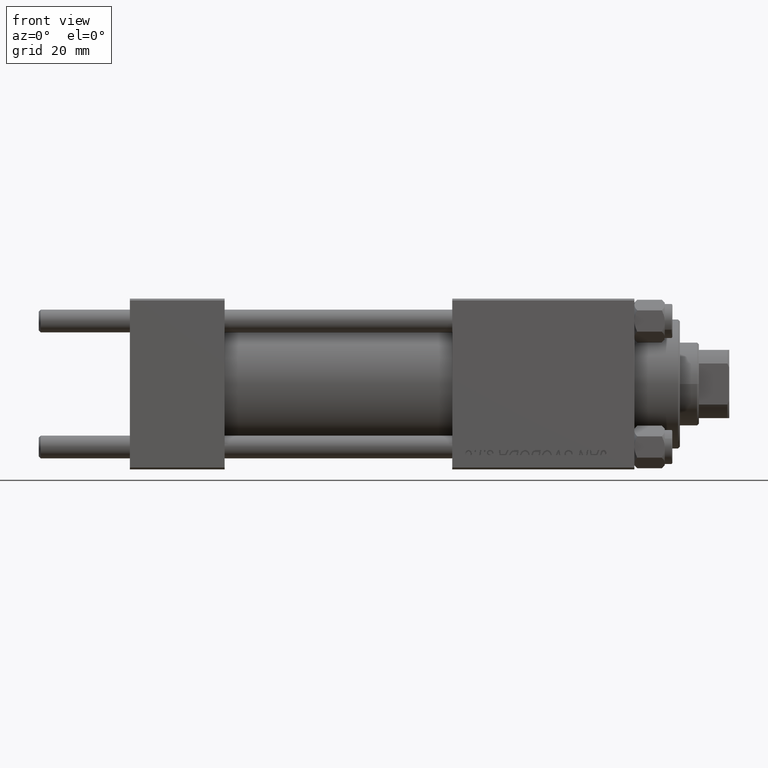
[diagram: clean part render]
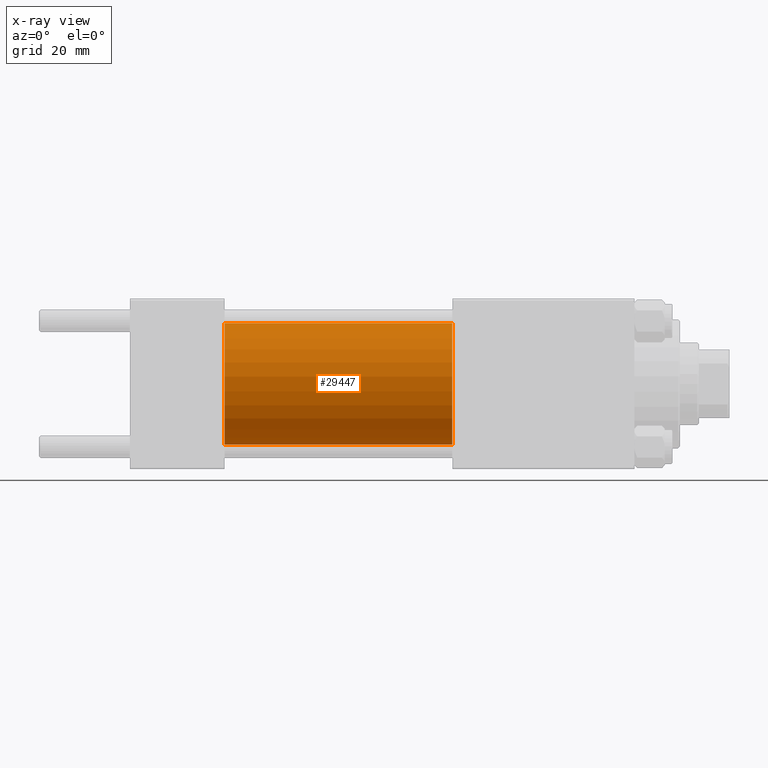
[diagram: x-ray — body ghosted, one internal face saturated and labeled with its STEP entity id]
A machine part, front view, then the same camera in x-ray: the body is ghosted and one INTERNAL B-rep face — a face not visible from any outside direction — is saturated and labeled: STEP entity #29447.
In plain terms, the highlighted cylindrical surface (partial cylindrical patch) has radius 16 mm, axis along (-1, -0, -0).
Its self-contained STEP definition (entity closure, byte-faithful):
#1292 = EDGE_CURVE ( 'NONE', #33005, #49227, #18111, .T. ) ;
#1473 = DIRECTION ( 'NONE',  ( 1.000000000000000000, 0.000000000000000000, 0.000000000000000000 ) ) ;
#2298 = DIRECTION ( 'NONE',  ( 0.000000000000000000, 0.000000000000000000, 1.000000000000000000 ) ) ;
#2724 = VECTOR ( 'NONE', #32178, 1000.000000000000000 ) ;
#7297 = CARTESIAN_POINT ( 'NONE',  ( 25.00000000000000000, 0.000000000000000000, 16.00000000000000000 ) ) ;
#8976 = LINE ( 'NONE', #16787, #28248 ) ;
#8990 = VERTEX_POINT ( 'NONE', #24027 ) ;
#9004 = CARTESIAN_POINT ( 'NONE',  ( 84.99999999999998579, 1.959434878635765131E-15, -16.00000000000000000 ) ) ;
#9056 = DIRECTION ( 'NONE',  ( 0.000000000000000000, 0.000000000000000000, -1.000000000000000000 ) ) ;
#9140 = DIRECTION ( 'NONE',  ( -1.000000000000000000, -0.000000000000000000, -0.000000000000000000 ) ) ;
#11439 = EDGE_LOOP ( 'NONE', ( #30801, #47624, #37261, #37759 ) ) ;
#16476 = AXIS2_PLACEMENT_3D ( 'NONE', #47481, #9140, #2298 ) ;
#16708 = FACE_OUTER_BOUND ( 'NONE', #11439, .T. ) ;
#16787 = CARTESIAN_POINT ( 'NONE',  ( 84.99999999999998579, 0.000000000000000000, 16.00000000000000000 ) ) ;
#17280 = EDGE_CURVE ( 'NONE', #8990, #33005, #8976, .T. ) ;
#18111 = CIRCLE ( 'NONE', #30991, 16.00000000000000000 ) ;
#22683 = CARTESIAN_POINT ( 'NONE',  ( 25.00000000000000000, 0.000000000000000000, 0.000000000000000000 ) ) ;
#23188 = DIRECTION ( 'NONE',  ( 1.000000000000000000, 0.000000000000000000, 0.000000000000000000 ) ) ;
#23415 = CARTESIAN_POINT ( 'NONE',  ( 84.99999999999998579, 0.000000000000000000, 0.000000000000000000 ) ) ;
#23432 = CARTESIAN_POINT ( 'NONE',  ( 25.00000000000000000, 1.959434878635765131E-15, -16.00000000000000000 ) ) ;
#24027 = CARTESIAN_POINT ( 'NONE',  ( 84.99999999999998579, 0.000000000000000000, 16.00000000000000000 ) ) ;
#24121 = LINE ( 'NONE', #9004, #2724 ) ;
#27098 = VERTEX_POINT ( 'NONE', #39969 ) ;
#28006 = EDGE_CURVE ( 'NONE', #27098, #49227, #24121, .T. ) ;
#28248 = VECTOR ( 'NONE', #31665, 1000.000000000000000 ) ;
#29447 = ADVANCED_FACE ( 'NONE', ( #16708 ), #32070, .F. ) ;
#30801 = ORIENTED_EDGE ( 'NONE', *, *, #33156, .T. ) ;
#30991 = AXIS2_PLACEMENT_3D ( 'NONE', #22683, #23188, #34801 ) ;
#31665 = DIRECTION ( 'NONE',  ( -1.000000000000000000, -0.000000000000000000, -0.000000000000000000 ) ) ;
#32070 = CYLINDRICAL_SURFACE ( 'NONE', #16476, 16.00000000000000000 ) ;
#32178 = DIRECTION ( 'NONE',  ( -1.000000000000000000, -0.000000000000000000, -0.000000000000000000 ) ) ;
#33005 = VERTEX_POINT ( 'NONE', #7297 ) ;
#33156 = EDGE_CURVE ( 'NONE', #8990, #27098, #37600, .T. ) ;
#34801 = DIRECTION ( 'NONE',  ( 0.000000000000000000, 0.000000000000000000, -1.000000000000000000 ) ) ;
#37261 = ORIENTED_EDGE ( 'NONE', *, *, #1292, .F. ) ;
#37600 = CIRCLE ( 'NONE', #46473, 16.00000000000000000 ) ;
#37759 = ORIENTED_EDGE ( 'NONE', *, *, #17280, .F. ) ;
#39969 = CARTESIAN_POINT ( 'NONE',  ( 84.99999999999998579, 1.959434878635765131E-15, -16.00000000000000000 ) ) ;
#46473 = AXIS2_PLACEMENT_3D ( 'NONE', #23415, #1473, #9056 ) ;
#47481 = CARTESIAN_POINT ( 'NONE',  ( 84.99999999999998579, 0.000000000000000000, 0.000000000000000000 ) ) ;
#47624 = ORIENTED_EDGE ( 'NONE', *, *, #28006, .T. ) ;
#49227 = VERTEX_POINT ( 'NONE', #23432 ) ;